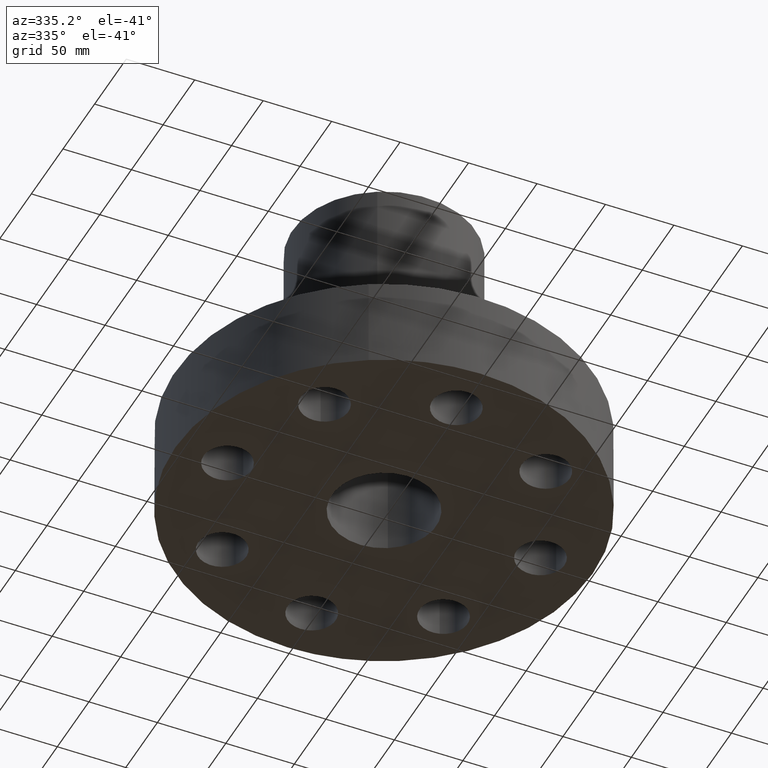
[diagram: clean part render]
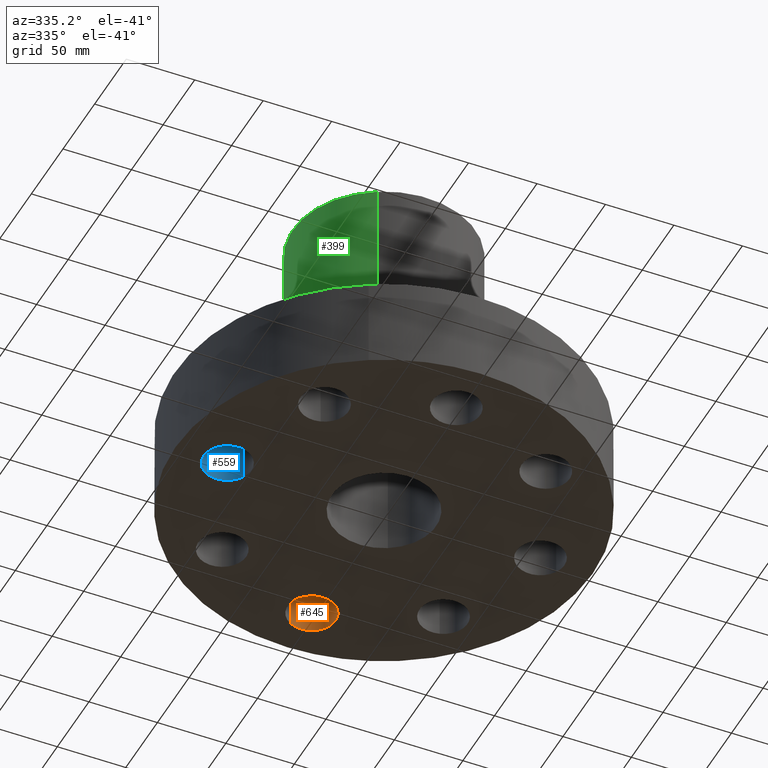
[diagram: same view with three faces highlighted in distinct colors, each labeled with its STEP entity id]
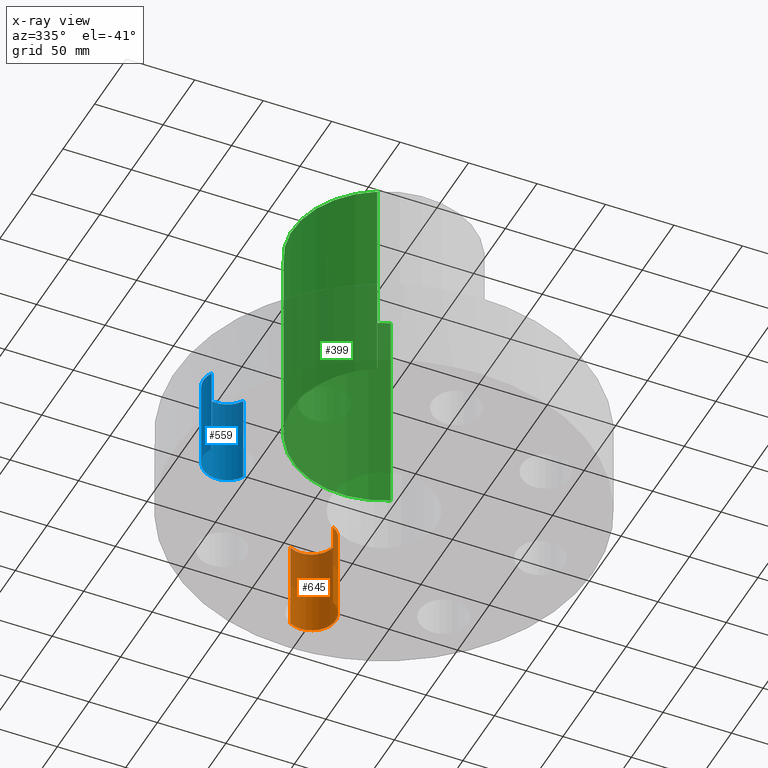
[diagram: x-ray of the same camera — body ghosted, the three highlighted faces saturated]
A machine part, auxiliary view with three faces highlighted in distinct colors.
The next image is the same camera in x-ray (body ghosted, the three faces saturated) — at least one of them is partly hidden behind the body in this view.
Their STEP definitions:

[orange] entity #645 — the highlighted cylindrical surface (edge-blend (fillet) strip) has radius 17.526 mm, axis along (0, 0, 1).
#238=AXIS2_PLACEMENT_3D('Circle Axis2P3D',#236,#237,$) ;
#618=AXIS2_PLACEMENT_3D('Cylinder Axis2P3D',#615,#616,#617) ;
#636=AXIS2_PLACEMENT_3D('Circle Axis2P3D',#634,#635,$) ;
#231=CARTESIAN_POINT('Vertex',(0.330803621638,3.89446803231,2.62000000001)) ;
#233=CARTESIAN_POINT('Vertex',(-0.330803621638,5.10553196772,2.62000000001)) ;
#236=CARTESIAN_POINT('Axis2P3D Location',(-6.99353086378E-016,4.50000000002,2.62000000001)) ;
#615=CARTESIAN_POINT('Axis2P3D Location',(-8.26636589428E-016,4.50000000002,0.00393700787402)) ;
#620=CARTESIAN_POINT('Line Origine',(0.330803621638,3.89446803231,1.31000000001)) ;
#624=CARTESIAN_POINT('Vertex',(0.330803621638,3.89446803231,2.2401153548E-016)) ;
#627=CARTESIAN_POINT('Line Origine',(-0.330803621638,5.10553196772,1.31000000001)) ;
#631=CARTESIAN_POINT('Vertex',(-0.330803621638,5.10553196772,2.2401153548E-016)) ;
#634=CARTESIAN_POINT('Axis2P3D Location',(-8.26636589428E-016,4.50000000002,0.)) ;
#237=DIRECTION('Axis2P3D Direction',(0.,0.,-0.0393700787402)) ;
#616=DIRECTION('Axis2P3D Direction',(0.,0.,0.0393700787402)) ;
#617=DIRECTION('Axis2P3D XDirection',(-0.0188750212049,0.0345504945626,0.)) ;
#621=DIRECTION('Vector Direction',(0.,0.,0.0393700787402)) ;
#628=DIRECTION('Vector Direction',(0.,0.,0.0393700787402)) ;
#635=DIRECTION('Axis2P3D Direction',(0.,0.,0.0393700787402)) ;
#622=VECTOR('Line Direction',#621,0.0393700787402) ;
#629=VECTOR('Line Direction',#628,0.0393700787402) ;
#640=ORIENTED_EDGE('',*,*,#626,.F.) ;
#641=ORIENTED_EDGE('',*,*,#240,.F.) ;
#642=ORIENTED_EDGE('',*,*,#633,.T.) ;
#643=ORIENTED_EDGE('',*,*,#638,.T.) ;
#645=ADVANCED_FACE('PartBody',(#644),#619,.F.) ;
#239=CIRCLE('generated circle',#238,0.690000000003) ;
#637=CIRCLE('generated circle',#636,0.690000000003) ;
#619=CYLINDRICAL_SURFACE('generated cylinder',#618,0.690000000003) ;
#240=EDGE_CURVE('',#234,#232,#239,.T.) ;
#626=EDGE_CURVE('',#232,#625,#623,.F.) ;
#633=EDGE_CURVE('',#234,#632,#630,.F.) ;
#638=EDGE_CURVE('',#632,#625,#637,.F.) ;
#639=EDGE_LOOP('',(#640,#641,#642,#643)) ;
#644=FACE_OUTER_BOUND('',#639,.T.) ;
#623=LINE('Line',#620,#622) ;
#630=LINE('Line',#627,#629) ;
#232=VERTEX_POINT('',#231) ;
#234=VERTEX_POINT('',#233) ;
#625=VERTEX_POINT('',#624) ;
#632=VERTEX_POINT('',#631) ;

[blue] entity #559 — the highlighted cylindrical surface (edge-blend (fillet) strip) has radius 17.526 mm, axis along (0, 0, 1).
#202=AXIS2_PLACEMENT_3D('Circle Axis2P3D',#200,#201,$) ;
#532=AXIS2_PLACEMENT_3D('Cylinder Axis2P3D',#529,#530,#531) ;
#550=AXIS2_PLACEMENT_3D('Circle Axis2P3D',#548,#549,$) ;
#195=CARTESIAN_POINT('Vertex',(-3.89446803231,0.330803621638,2.62000000001)) ;
#197=CARTESIAN_POINT('Vertex',(-5.10553196772,-0.330803621638,2.62000000001)) ;
#200=CARTESIAN_POINT('Axis2P3D Location',(-4.50000000002,-1.1189649382E-015,2.62000000001)) ;
#529=CARTESIAN_POINT('Axis2P3D Location',(-4.50000000002,-5.51091059619E-016,0.00393700787402)) ;
#534=CARTESIAN_POINT('Line Origine',(-3.89446803231,0.330803621638,1.31000000001)) ;
#538=CARTESIAN_POINT('Vertex',(-3.89446803231,0.330803621638,2.2401153548E-016)) ;
#541=CARTESIAN_POINT('Line Origine',(-5.10553196772,-0.330803621638,1.31000000001)) ;
#545=CARTESIAN_POINT('Vertex',(-5.10553196772,-0.330803621638,2.2401153548E-016)) ;
#548=CARTESIAN_POINT('Axis2P3D Location',(-4.50000000002,-5.51091059619E-016,0.)) ;
#201=DIRECTION('Axis2P3D Direction',(0.,0.,-0.0393700787402)) ;
#530=DIRECTION('Axis2P3D Direction',(0.,0.,0.0393700787402)) ;
#531=DIRECTION('Axis2P3D XDirection',(-0.0345504945626,-0.0188750212049,0.)) ;
#535=DIRECTION('Vector Direction',(0.,0.,0.0393700787402)) ;
#542=DIRECTION('Vector Direction',(0.,0.,0.0393700787402)) ;
#549=DIRECTION('Axis2P3D Direction',(0.,0.,0.0393700787402)) ;
#536=VECTOR('Line Direction',#535,0.0393700787402) ;
#543=VECTOR('Line Direction',#542,0.0393700787402) ;
#554=ORIENTED_EDGE('',*,*,#540,.F.) ;
#555=ORIENTED_EDGE('',*,*,#204,.F.) ;
#556=ORIENTED_EDGE('',*,*,#547,.T.) ;
#557=ORIENTED_EDGE('',*,*,#552,.T.) ;
#559=ADVANCED_FACE('PartBody',(#558),#533,.F.) ;
#203=CIRCLE('generated circle',#202,0.690000000003) ;
#551=CIRCLE('generated circle',#550,0.690000000003) ;
#533=CYLINDRICAL_SURFACE('generated cylinder',#532,0.690000000003) ;
#204=EDGE_CURVE('',#198,#196,#203,.T.) ;
#540=EDGE_CURVE('',#196,#539,#537,.F.) ;
#547=EDGE_CURVE('',#198,#546,#544,.F.) ;
#552=EDGE_CURVE('',#546,#539,#551,.F.) ;
#553=EDGE_LOOP('',(#554,#555,#556,#557)) ;
#558=FACE_OUTER_BOUND('',#553,.T.) ;
#537=LINE('Line',#534,#536) ;
#544=LINE('Line',#541,#543) ;
#196=VERTEX_POINT('',#195) ;
#198=VERTEX_POINT('',#197) ;
#539=VERTEX_POINT('',#538) ;
#546=VERTEX_POINT('',#545) ;

[green] entity #399 — the highlighted cylindrical surface (partial cylindrical patch) has radius 66.675 mm, axis along (0, 0, -1).
#121=AXIS2_PLACEMENT_3D('Circle Axis2P3D',#119,#120,$) ;
#360=AXIS2_PLACEMENT_3D('Cylinder Axis2P3D',#357,#358,#359) ;
#390=AXIS2_PLACEMENT_3D('Circle Axis2P3D',#388,#389,$) ;
#119=CARTESIAN_POINT('Axis2P3D Location',(0.,0.,2.62000000001)) ;
#123=CARTESIAN_POINT('Vertex',(-1.25849203884,-2.30365422497,2.62000000001)) ;
#125=CARTESIAN_POINT('Vertex',(1.25849203884,2.30365422497,2.62000000001)) ;
#357=CARTESIAN_POINT('Axis2P3D Location',(0.,0.,4.25000000002)) ;
#362=CARTESIAN_POINT('Line Origine',(1.25849203884,2.30365422497,5.68500000002)) ;
#366=CARTESIAN_POINT('Vertex',(1.25849203884,2.30365422497,8.75000000004)) ;
#373=CARTESIAN_POINT('Vertex',(-1.25849203884,-2.30365422497,8.75000000004)) ;
#376=CARTESIAN_POINT('Line Origine',(-1.25849203884,-2.30365422497,5.68500000002)) ;
#388=CARTESIAN_POINT('Axis2P3D Location',(0.,0.,8.75000000003)) ;
#120=DIRECTION('Axis2P3D Direction',(0.,0.,-0.0393700787402)) ;
#358=DIRECTION('Axis2P3D Direction',(0.,0.,-0.0393700787402)) ;
#359=DIRECTION('Axis2P3D XDirection',(-0.0188750212049,-0.0345504945626,0.)) ;
#363=DIRECTION('Vector Direction',(0.,0.,-0.0393700787402)) ;
#377=DIRECTION('Vector Direction',(0.,0.,-0.0393700787402)) ;
#389=DIRECTION('Axis2P3D Direction',(0.,0.,-0.0393700787402)) ;
#364=VECTOR('Line Direction',#363,0.0393700787402) ;
#378=VECTOR('Line Direction',#377,0.0393700787402) ;
#394=ORIENTED_EDGE('',*,*,#127,.F.) ;
#395=ORIENTED_EDGE('',*,*,#380,.T.) ;
#396=ORIENTED_EDGE('',*,*,#392,.T.) ;
#397=ORIENTED_EDGE('',*,*,#368,.F.) ;
#399=ADVANCED_FACE('PartBody',(#398),#361,.T.) ;
#122=CIRCLE('generated circle',#121,2.62500000001) ;
#391=CIRCLE('generated circle',#390,2.62500000001) ;
#361=CYLINDRICAL_SURFACE('generated cylinder',#360,2.62500000001) ;
#127=EDGE_CURVE('',#124,#126,#122,.T.) ;
#368=EDGE_CURVE('',#126,#367,#365,.F.) ;
#380=EDGE_CURVE('',#124,#374,#379,.F.) ;
#392=EDGE_CURVE('',#374,#367,#391,.T.) ;
#393=EDGE_LOOP('',(#394,#395,#396,#397)) ;
#398=FACE_OUTER_BOUND('',#393,.T.) ;
#365=LINE('Line',#362,#364) ;
#379=LINE('Line',#376,#378) ;
#124=VERTEX_POINT('',#123) ;
#126=VERTEX_POINT('',#125) ;
#367=VERTEX_POINT('',#366) ;
#374=VERTEX_POINT('',#373) ;